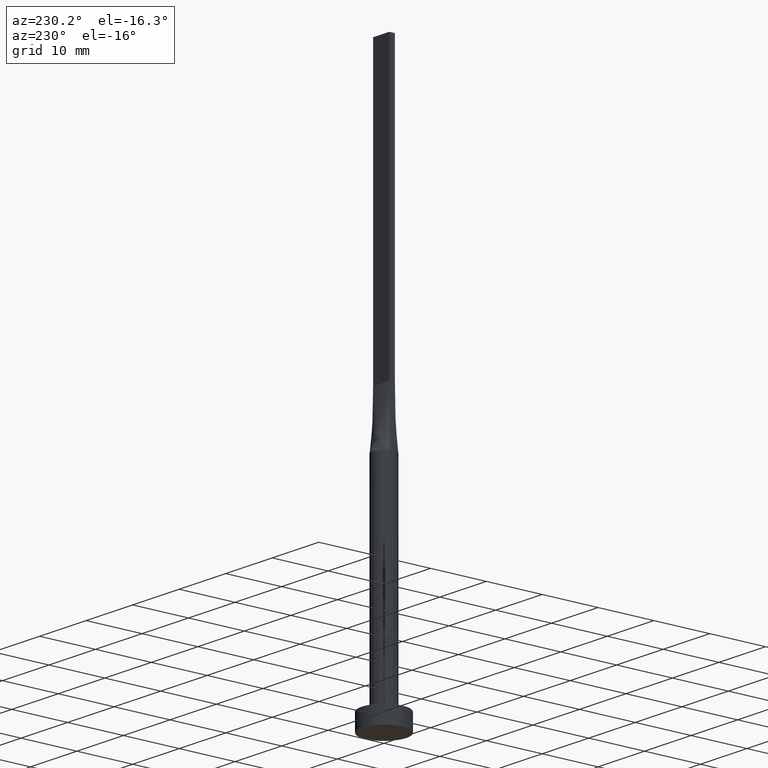
[diagram: clean part render]
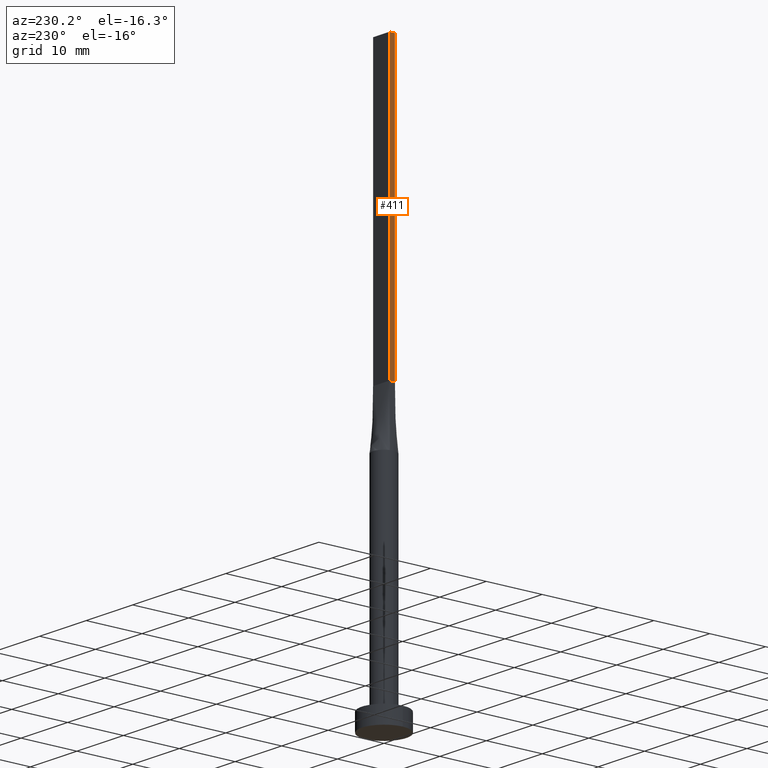
[diagram: same view with one face highlighted and labeled with its STEP entity id]
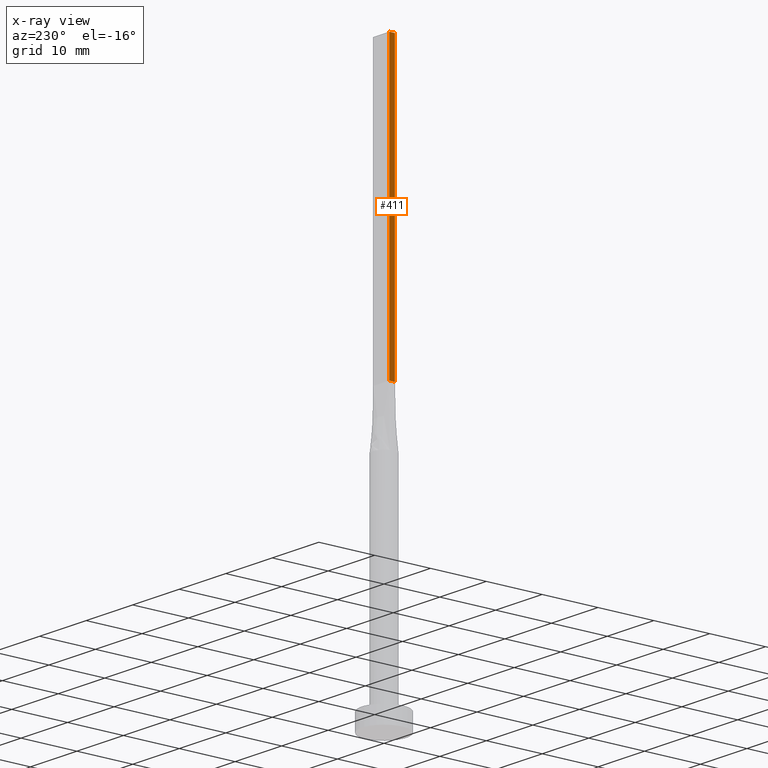
[diagram: x-ray of the same camera — body ghosted, the highlighted face saturated]
A machine part, auxiliary view. The second image highlights one B-rep face of the part: STEP entity #411.
The next image is the same camera in x-ray: the body ghosted, the highlighted face saturated — about 0% of this face is hidden behind the body in this view.
In plain terms, the highlighted planar face has unit normal (1, -0, 0).
Its self-contained STEP definition (entity closure, byte-faithful):
#29 = DIRECTION ( 'NONE',  ( -0.000000000000000000, -0.000000000000000000, -1.000000000000000000 ) ) ;
#39 = LINE ( 'NONE', #423, #460 ) ;
#48 = VECTOR ( 'NONE', #126, 1000.000000000000000 ) ;
#75 = DIRECTION ( 'NONE',  ( -2.168404344971009361E-16, -1.000000000000000000, 0.000000000000000000 ) ) ;
#83 = DIRECTION ( 'NONE',  ( -0.000000000000000000, -0.000000000000000000, -1.000000000000000000 ) ) ;
#85 = VECTOR ( 'NONE', #29, 1000.000000000000000 ) ;
#126 = DIRECTION ( 'NONE',  ( -2.168404344971009361E-16, -1.000000000000000000, 0.000000000000000000 ) ) ;
#131 = LINE ( 'NONE', #513, #479 ) ;
#144 = DIRECTION ( 'NONE',  ( 1.000000000000000000, -2.168404344971009361E-16, 0.000000000000000000 ) ) ;
#146 = ORIENTED_EDGE ( 'NONE', *, *, #330, .T. ) ;
#153 = EDGE_LOOP ( 'NONE', ( #146, #295, #480, #495 ) ) ;
#186 = FACE_OUTER_BOUND ( 'NONE', #153, .T. ) ;
#204 = CARTESIAN_POINT ( 'NONE',  ( -1.749999999999999778, 0.5000000000000002220, 100.0000000000000000 ) ) ;
#220 = CARTESIAN_POINT ( 'NONE',  ( -1.750000000000000000, -0.4999999999999995559, 50.00000000000000000 ) ) ;
#252 = LINE ( 'NONE', #297, #48 ) ;
#295 = ORIENTED_EDGE ( 'NONE', *, *, #551, .F. ) ;
#297 = CARTESIAN_POINT ( 'NONE',  ( -1.749999999999999778, 0.5000000000000002220, 100.0000000000000000 ) ) ;
#300 = CARTESIAN_POINT ( 'NONE',  ( -1.749999999999999778, 0.5000000000000002220, 50.00000000000000000 ) ) ;
#305 = LINE ( 'NONE', #204, #85 ) ;
#319 = VERTEX_POINT ( 'NONE', #559 ) ;
#330 = EDGE_CURVE ( 'NONE', #575, #414, #131, .T. ) ;
#337 = EDGE_CURVE ( 'NONE', #572, #319, #252, .T. ) ;
#343 = CARTESIAN_POINT ( 'NONE',  ( -1.749999999999999778, 0.5000000000000002220, 100.0000000000000000 ) ) ;
#406 = DIRECTION ( 'NONE',  ( 2.168404344971009361E-16, 1.000000000000000000, 0.000000000000000000 ) ) ;
#411 = ADVANCED_FACE ( 'NONE', ( #186 ), #442, .F. ) ;
#414 = VERTEX_POINT ( 'NONE', #220 ) ;
#423 = CARTESIAN_POINT ( 'NONE',  ( -1.750000000000000000, -0.4999999999999995559, 100.0000000000000000 ) ) ;
#442 = PLANE ( 'NONE',  #453 ) ;
#453 = AXIS2_PLACEMENT_3D ( 'NONE', #539, #144, #406 ) ;
#460 = VECTOR ( 'NONE', #83, 1000.000000000000000 ) ;
#479 = VECTOR ( 'NONE', #75, 1000.000000000000000 ) ;
#480 = ORIENTED_EDGE ( 'NONE', *, *, #337, .F. ) ;
#495 = ORIENTED_EDGE ( 'NONE', *, *, #562, .T. ) ;
#513 = CARTESIAN_POINT ( 'NONE',  ( -1.749999999999999778, 0.5000000000000002220, 50.00000000000000000 ) ) ;
#539 = CARTESIAN_POINT ( 'NONE',  ( -1.749999999999999778, 0.5000000000000002220, 100.0000000000000000 ) ) ;
#551 = EDGE_CURVE ( 'NONE', #319, #414, #39, .T. ) ;
#559 = CARTESIAN_POINT ( 'NONE',  ( -1.750000000000000000, -0.4999999999999995559, 100.0000000000000000 ) ) ;
#562 = EDGE_CURVE ( 'NONE', #572, #575, #305, .T. ) ;
#572 = VERTEX_POINT ( 'NONE', #343 ) ;
#575 = VERTEX_POINT ( 'NONE', #300 ) ;